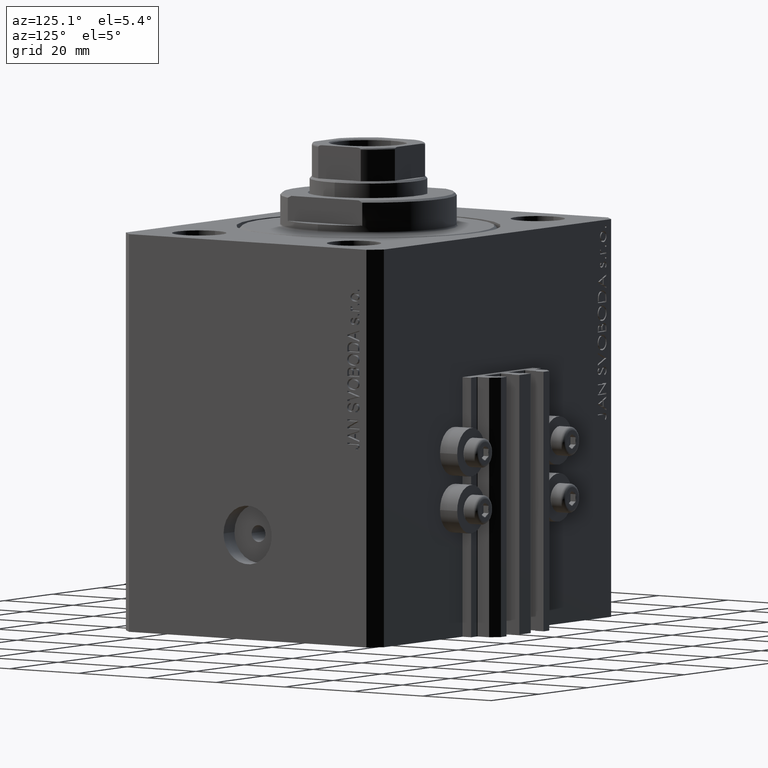
[diagram: clean part render]
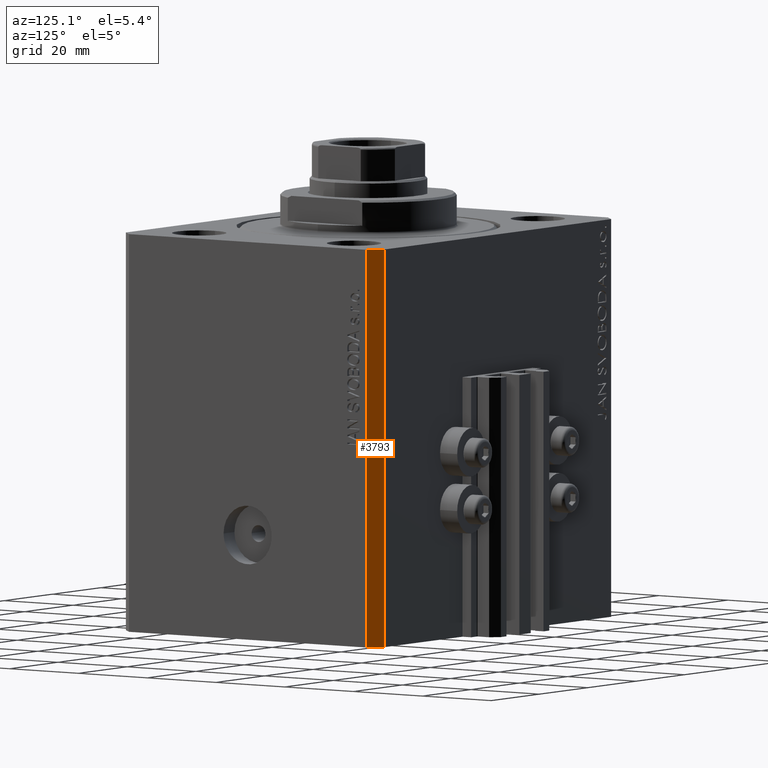
[diagram: same view with one face highlighted and labeled with its STEP entity id]
A machine part, auxiliary view. The second image highlights one B-rep face of the part: STEP entity #3793.
In plain terms, the highlighted planar face has unit normal (0.7071, 0.7071, 0).
Its self-contained STEP definition (entity closure, byte-faithful):
#585 = VERTEX_POINT ( 'NONE', #43167 ) ;
#1531 = ORIENTED_EDGE ( 'NONE', *, *, #32206, .T. ) ;
#2320 = EDGE_CURVE ( 'NONE', #14171, #14979, #25767, .T. ) ;
#2643 = DIRECTION ( 'NONE',  ( 0.7071067811865590080, 0.7071067811865361374, -0.000000000000000000 ) ) ;
#3183 = VECTOR ( 'NONE', #26034, 1000.000000000000000 ) ;
#3793 = ADVANCED_FACE ( 'NONE', ( #9110 ), #38329, .T. ) ;
#4437 = ORIENTED_EDGE ( 'NONE', *, *, #10221, .F. ) ;
#5564 = LINE ( 'NONE', #31437, #3183 ) ;
#6045 = CARTESIAN_POINT ( 'NONE',  ( 47.00000000000056843, 37.49999999999999289, 0.000000000000000000 ) ) ;
#6612 = CARTESIAN_POINT ( 'NONE',  ( 47.00000000000056843, 37.49999999999999289, -95.00000000000000000 ) ) ;
#7798 = VECTOR ( 'NONE', #43226, 1000.000000000000114 ) ;
#8453 = AXIS2_PLACEMENT_3D ( 'NONE', #23964, #2643, #17266 ) ;
#9110 = FACE_OUTER_BOUND ( 'NONE', #34450, .T. ) ;
#10221 = EDGE_CURVE ( 'NONE', #585, #23801, #5564, .T. ) ;
#13759 = VECTOR ( 'NONE', #32697, 1000.000000000000000 ) ;
#14171 = VERTEX_POINT ( 'NONE', #14851 ) ;
#14851 = CARTESIAN_POINT ( 'NONE',  ( 47.00000000000056843, 37.49999999999999289, -95.00000000000000000 ) ) ;
#14979 = VERTEX_POINT ( 'NONE', #6045 ) ;
#15914 = ORIENTED_EDGE ( 'NONE', *, *, #2320, .T. ) ;
#16194 = CARTESIAN_POINT ( 'NONE',  ( 50.00000000000051870, 34.49999999999995026, 0.000000000000000000 ) ) ;
#17144 = LINE ( 'NONE', #46335, #7798 ) ;
#17201 = EDGE_CURVE ( 'NONE', #23801, #14979, #20260, .T. ) ;
#17266 = DIRECTION ( 'NONE',  ( -0.7071067811865360264, 0.7071067811865588970, 0.000000000000000000 ) ) ;
#20020 = DIRECTION ( 'NONE',  ( -0.7071067811865361374, 0.7071067811865588970, 0.000000000000000000 ) ) ;
#20260 = LINE ( 'NONE', #16194, #40088 ) ;
#23801 = VERTEX_POINT ( 'NONE', #46089 ) ;
#23964 = CARTESIAN_POINT ( 'NONE',  ( 50.00000000000051870, 34.49999999999995026, -95.00000000000000000 ) ) ;
#25767 = LINE ( 'NONE', #6612, #13759 ) ;
#26034 = DIRECTION ( 'NONE',  ( 0.000000000000000000, 0.000000000000000000, 1.000000000000000000 ) ) ;
#29039 = ORIENTED_EDGE ( 'NONE', *, *, #17201, .F. ) ;
#31437 = CARTESIAN_POINT ( 'NONE',  ( 50.00000000000051870, 34.49999999999995026, -95.00000000000000000 ) ) ;
#32206 = EDGE_CURVE ( 'NONE', #585, #14171, #17144, .T. ) ;
#32697 = DIRECTION ( 'NONE',  ( 0.000000000000000000, 0.000000000000000000, 1.000000000000000000 ) ) ;
#34450 = EDGE_LOOP ( 'NONE', ( #29039, #4437, #1531, #15914 ) ) ;
#38329 = PLANE ( 'NONE',  #8453 ) ;
#40088 = VECTOR ( 'NONE', #20020, 1000.000000000000114 ) ;
#43167 = CARTESIAN_POINT ( 'NONE',  ( 50.00000000000051870, 34.49999999999995026, -95.00000000000000000 ) ) ;
#43226 = DIRECTION ( 'NONE',  ( -0.7071067811865361374, 0.7071067811865588970, 0.000000000000000000 ) ) ;
#46089 = CARTESIAN_POINT ( 'NONE',  ( 50.00000000000051870, 34.49999999999995026, 0.000000000000000000 ) ) ;
#46335 = CARTESIAN_POINT ( 'NONE',  ( 50.00000000000051870, 34.49999999999995026, -95.00000000000000000 ) ) ;